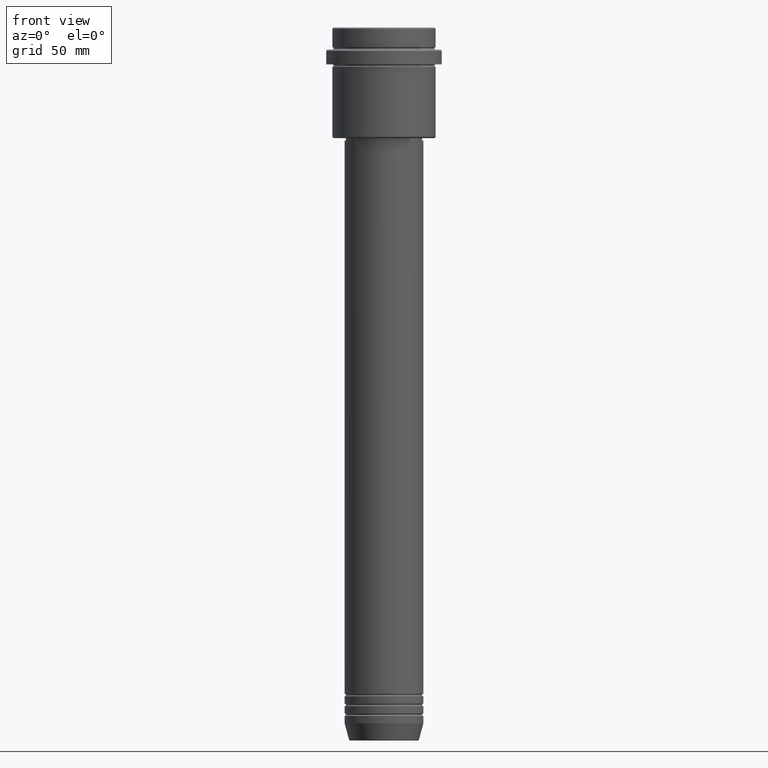
[diagram: clean part render]
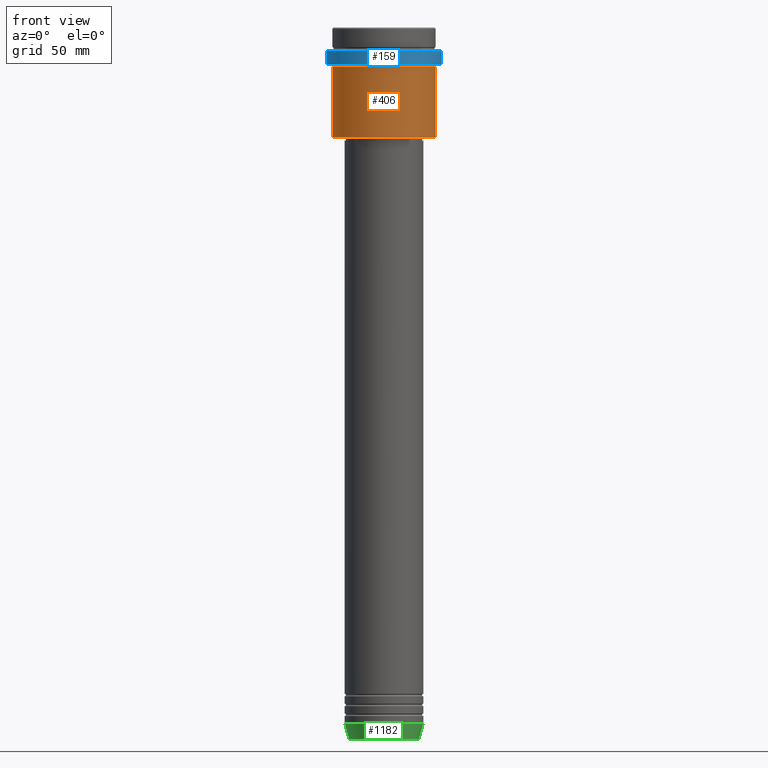
[diagram: same view with three faces highlighted in distinct colors, each labeled with its STEP entity id]
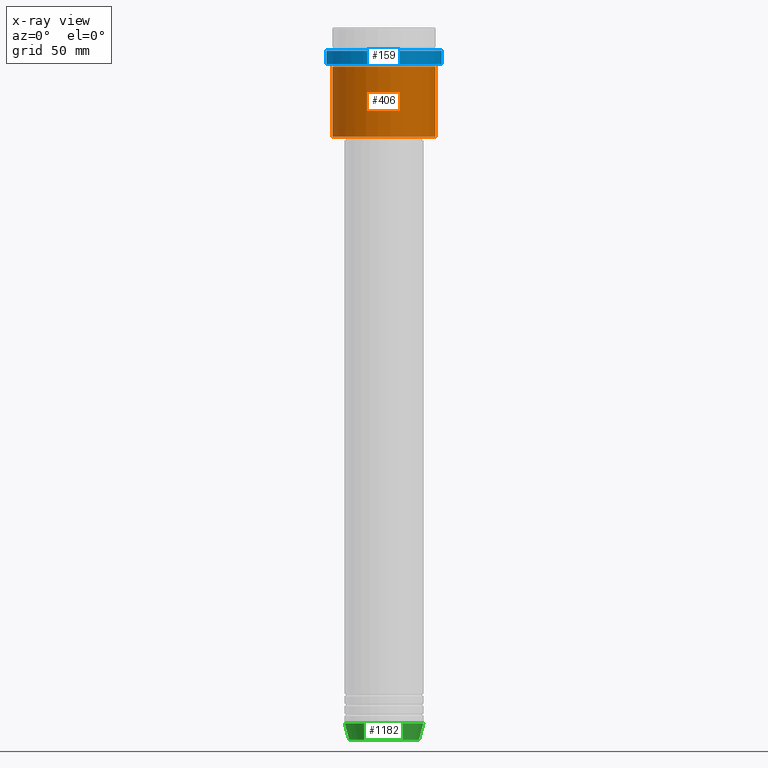
[diagram: x-ray of the same camera — body ghosted, the three highlighted faces saturated]
A machine part, front view with three faces highlighted in distinct colors.
The next image is the same camera in x-ray (body ghosted, the three faces saturated) — at least one of them is partly hidden behind the body in this view.
Their STEP definitions:

[orange] entity #406 — the highlighted cylindrical surface (partial cylindrical patch) has radius 21 mm, axis along (-0, -0, 1).
#2 = DIRECTION ( 'NONE',  ( -0.000000000000000000, -0.000000000000000000, 1.000000000000000000 ) ) ;
#15 = ORIENTED_EDGE ( 'NONE', *, *, #197, .T. ) ;
#72 = FACE_OUTER_BOUND ( 'NONE', #273, .T. ) ;
#117 = EDGE_CURVE ( 'NONE', #931, #1112, #400, .T. ) ;
#123 = CIRCLE ( 'NONE', #1171, 21.00000000000000000 ) ;
#179 = CARTESIAN_POINT ( 'NONE',  ( -21.00000000000000000, 2.571758278209441661E-15, 0.000000000000000000 ) ) ;
#197 = EDGE_CURVE ( 'NONE', #1308, #953, #1208, .T. ) ;
#273 = EDGE_LOOP ( 'NONE', ( #570, #1340, #15, #942 ) ) ;
#344 = EDGE_CURVE ( 'NONE', #931, #1308, #123, .T. ) ;
#400 = LINE ( 'NONE', #179, #487 ) ;
#406 = ADVANCED_FACE ( 'NONE', ( #72 ), #713, .T. ) ;
#450 = DIRECTION ( 'NONE',  ( 1.000000000000000000, 0.000000000000000000, 0.000000000000000000 ) ) ;
#454 = CARTESIAN_POINT ( 'NONE',  ( -21.00000000000000000, 2.571758278209441661E-15, -16.00000000000000355 ) ) ;
#464 = VECTOR ( 'NONE', #2, 1000.000000000000000 ) ;
#487 = VECTOR ( 'NONE', #744, 1000.000000000000000 ) ;
#570 = ORIENTED_EDGE ( 'NONE', *, *, #117, .F. ) ;
#599 = DIRECTION ( 'NONE',  ( -0.000000000000000000, -0.000000000000000000, 1.000000000000000000 ) ) ;
#648 = EDGE_CURVE ( 'NONE', #1112, #953, #1131, .T. ) ;
#713 = CYLINDRICAL_SURFACE ( 'NONE', #1358, 21.00000000000000000 ) ;
#734 = CARTESIAN_POINT ( 'NONE',  ( 0.000000000000000000, 0.000000000000000000, -44.49999999999991473 ) ) ;
#744 = DIRECTION ( 'NONE',  ( -0.000000000000000000, -0.000000000000000000, 1.000000000000000000 ) ) ;
#750 = CARTESIAN_POINT ( 'NONE',  ( 21.00000000000000000, 0.000000000000000000, -44.49999999999991473 ) ) ;
#801 = CARTESIAN_POINT ( 'NONE',  ( 0.000000000000000000, 0.000000000000000000, -16.00000000000000355 ) ) ;
#809 = CARTESIAN_POINT ( 'NONE',  ( 0.000000000000000000, 0.000000000000000000, 0.000000000000000000 ) ) ;
#817 = DIRECTION ( 'NONE',  ( -0.000000000000000000, -0.000000000000000000, 1.000000000000000000 ) ) ;
#931 = VERTEX_POINT ( 'NONE', #1415 ) ;
#939 = DIRECTION ( 'NONE',  ( 1.000000000000000000, 0.000000000000000000, 0.000000000000000000 ) ) ;
#942 = ORIENTED_EDGE ( 'NONE', *, *, #648, .F. ) ;
#953 = VERTEX_POINT ( 'NONE', #971 ) ;
#971 = CARTESIAN_POINT ( 'NONE',  ( 21.00000000000000000, 0.000000000000000000, -16.00000000000000355 ) ) ;
#1084 = AXIS2_PLACEMENT_3D ( 'NONE', #801, #1341, #450 ) ;
#1112 = VERTEX_POINT ( 'NONE', #454 ) ;
#1131 = CIRCLE ( 'NONE', #1084, 21.00000000000000000 ) ;
#1171 = AXIS2_PLACEMENT_3D ( 'NONE', #734, #817, #1258 ) ;
#1208 = LINE ( 'NONE', #1348, #464 ) ;
#1258 = DIRECTION ( 'NONE',  ( -1.000000000000000000, 0.000000000000000000, 0.000000000000000000 ) ) ;
#1308 = VERTEX_POINT ( 'NONE', #750 ) ;
#1340 = ORIENTED_EDGE ( 'NONE', *, *, #344, .T. ) ;
#1341 = DIRECTION ( 'NONE',  ( -0.000000000000000000, -0.000000000000000000, 1.000000000000000000 ) ) ;
#1348 = CARTESIAN_POINT ( 'NONE',  ( 21.00000000000000000, 0.000000000000000000, 0.000000000000000000 ) ) ;
#1358 = AXIS2_PLACEMENT_3D ( 'NONE', #809, #599, #939 ) ;
#1415 = CARTESIAN_POINT ( 'NONE',  ( -21.00000000000000000, 2.571758278209441661E-15, -44.49999999999991473 ) ) ;

[blue] entity #159 — the highlighted cylindrical surface (partial cylindrical patch) has radius 23.5 mm, axis along (-0, -0, 1).
#9 = VECTOR ( 'NONE', #204, 1000.000000000000000 ) ;
#67 = LINE ( 'NONE', #608, #830 ) ;
#97 = VERTEX_POINT ( 'NONE', #1396 ) ;
#100 = LINE ( 'NONE', #641, #9 ) ;
#112 = FACE_OUTER_BOUND ( 'NONE', #818, .T. ) ;
#127 = CIRCLE ( 'NONE', #444, 23.50000000000000000 ) ;
#159 = ADVANCED_FACE ( 'NONE', ( #112 ), #1190, .T. ) ;
#183 = CARTESIAN_POINT ( 'NONE',  ( 23.50000000000000000, 0.000000000000000000, -9.499999999999971578 ) ) ;
#202 = DIRECTION ( 'NONE',  ( -0.000000000000000000, -0.000000000000000000, 1.000000000000000000 ) ) ;
#204 = DIRECTION ( 'NONE',  ( -0.000000000000000000, -0.000000000000000000, 1.000000000000000000 ) ) ;
#270 = DIRECTION ( 'NONE',  ( -0.000000000000000000, -0.000000000000000000, 1.000000000000000000 ) ) ;
#416 = DIRECTION ( 'NONE',  ( 1.000000000000000000, 0.000000000000000000, 0.000000000000000000 ) ) ;
#435 = ORIENTED_EDGE ( 'NONE', *, *, #904, .T. ) ;
#444 = AXIS2_PLACEMENT_3D ( 'NONE', #1091, #1082, #416 ) ;
#466 = EDGE_CURVE ( 'NONE', #1192, #97, #100, .T. ) ;
#485 = ORIENTED_EDGE ( 'NONE', *, *, #466, .F. ) ;
#494 = VERTEX_POINT ( 'NONE', #528 ) ;
#528 = CARTESIAN_POINT ( 'NONE',  ( 23.50000000000000355, 0.000000000000000000, -15.00000000000000000 ) ) ;
#530 = AXIS2_PLACEMENT_3D ( 'NONE', #1099, #1025, #661 ) ;
#608 = CARTESIAN_POINT ( 'NONE',  ( 23.50000000000000000, 0.000000000000000000, 0.000000000000000000 ) ) ;
#641 = CARTESIAN_POINT ( 'NONE',  ( -23.50000000000000000, 2.877919977996280320E-15, 0.000000000000000000 ) ) ;
#661 = DIRECTION ( 'NONE',  ( 1.000000000000000000, 0.000000000000000000, 0.000000000000000000 ) ) ;
#680 = CIRCLE ( 'NONE', #881, 23.50000000000000355 ) ;
#704 = ORIENTED_EDGE ( 'NONE', *, *, #708, .T. ) ;
#708 = EDGE_CURVE ( 'NONE', #494, #1246, #67, .T. ) ;
#818 = EDGE_LOOP ( 'NONE', ( #485, #435, #704, #1159 ) ) ;
#830 = VECTOR ( 'NONE', #270, 1000.000000000000000 ) ;
#840 = DIRECTION ( 'NONE',  ( 1.000000000000000000, 0.000000000000000000, 0.000000000000000000 ) ) ;
#881 = AXIS2_PLACEMENT_3D ( 'NONE', #1309, #202, #840 ) ;
#904 = EDGE_CURVE ( 'NONE', #1192, #494, #680, .T. ) ;
#1025 = DIRECTION ( 'NONE',  ( -0.000000000000000000, -0.000000000000000000, 1.000000000000000000 ) ) ;
#1082 = DIRECTION ( 'NONE',  ( 0.000000000000000000, 0.000000000000000000, -1.000000000000000000 ) ) ;
#1091 = CARTESIAN_POINT ( 'NONE',  ( 0.000000000000000000, 0.000000000000000000, -9.499999999999971578 ) ) ;
#1099 = CARTESIAN_POINT ( 'NONE',  ( 0.000000000000000000, 0.000000000000000000, 0.000000000000000000 ) ) ;
#1159 = ORIENTED_EDGE ( 'NONE', *, *, #1227, .T. ) ;
#1190 = CYLINDRICAL_SURFACE ( 'NONE', #530, 23.50000000000000000 ) ;
#1192 = VERTEX_POINT ( 'NONE', #1236 ) ;
#1227 = EDGE_CURVE ( 'NONE', #1246, #97, #127, .T. ) ;
#1236 = CARTESIAN_POINT ( 'NONE',  ( -23.50000000000000711, 2.877919977996281109E-15, -15.00000000000000000 ) ) ;
#1246 = VERTEX_POINT ( 'NONE', #183 ) ;
#1309 = CARTESIAN_POINT ( 'NONE',  ( 0.000000000000000000, 0.000000000000000000, -15.00000000000000000 ) ) ;
#1396 = CARTESIAN_POINT ( 'NONE',  ( -23.50000000000000000, 2.877919977996280320E-15, -9.499999999999971578 ) ) ;

[green] entity #1182 — the highlighted conical surface has half-angle 15 deg.
#20 = EDGE_CURVE ( 'NONE', #504, #1035, #300, .T. ) ;
#27 = EDGE_LOOP ( 'NONE', ( #64, #234, #993, #1235 ) ) ;
#48 = CARTESIAN_POINT ( 'NONE',  ( -16.00000000000000000, 1.959434878635765131E-15, -283.0000000000000568 ) ) ;
#61 = DIRECTION ( 'NONE',  ( -0.000000000000000000, -0.000000000000000000, 1.000000000000000000 ) ) ;
#64 = ORIENTED_EDGE ( 'NONE', *, *, #810, .F. ) ;
#88 = CARTESIAN_POINT ( 'NONE',  ( 16.00000000000000000, 0.000000000000000000, -283.0000000000000568 ) ) ;
#104 = CARTESIAN_POINT ( 'NONE',  ( -14.22365507213718772, 1.850665122131323337E-15, -289.6294095225512706 ) ) ;
#147 = DIRECTION ( 'NONE',  ( 1.000000000000000000, 0.000000000000000000, 0.000000000000000000 ) ) ;
#234 = ORIENTED_EDGE ( 'NONE', *, *, #822, .T. ) ;
#247 = VERTEX_POINT ( 'NONE', #104 ) ;
#254 = FACE_OUTER_BOUND ( 'NONE', #27, .T. ) ;
#300 = LINE ( 'NONE', #88, #872 ) ;
#360 = CARTESIAN_POINT ( 'NONE',  ( 0.000000000000000000, 0.000000000000000000, -283.0000000000000568 ) ) ;
#361 = VERTEX_POINT ( 'NONE', #488 ) ;
#401 = EDGE_CURVE ( 'NONE', #361, #1035, #876, .T. ) ;
#415 = AXIS2_PLACEMENT_3D ( 'NONE', #937, #61, #917 ) ;
#488 = CARTESIAN_POINT ( 'NONE',  ( -16.00000000000000000, 1.959434878635765131E-15, -283.0000000000000568 ) ) ;
#504 = VERTEX_POINT ( 'NONE', #1389 ) ;
#624 = AXIS2_PLACEMENT_3D ( 'NONE', #1163, #1039, #827 ) ;
#696 = DIRECTION ( 'NONE',  ( -0.000000000000000000, -0.000000000000000000, 1.000000000000000000 ) ) ;
#791 = CONICAL_SURFACE ( 'NONE', #1292, 16.00000000000000000, 0.2617993877991500740 ) ;
#810 = EDGE_CURVE ( 'NONE', #247, #361, #932, .T. ) ;
#822 = EDGE_CURVE ( 'NONE', #247, #504, #1174, .T. ) ;
#827 = DIRECTION ( 'NONE',  ( 1.000000000000000000, 0.000000000000000000, 0.000000000000000000 ) ) ;
#859 = DIRECTION ( 'NONE',  ( 0.2588190451025213501, 0.000000000000000000, 0.9659258262890680902 ) ) ;
#872 = VECTOR ( 'NONE', #859, 1000.000000000000000 ) ;
#876 = CIRCLE ( 'NONE', #624, 16.00000000000000000 ) ;
#917 = DIRECTION ( 'NONE',  ( 1.000000000000000000, 0.000000000000000000, 0.000000000000000000 ) ) ;
#932 = LINE ( 'NONE', #48, #1151 ) ;
#937 = CARTESIAN_POINT ( 'NONE',  ( 0.000000000000000000, 0.000000000000000000, -289.6294095225512706 ) ) ;
#985 = CARTESIAN_POINT ( 'NONE',  ( 16.00000000000000000, 0.000000000000000000, -283.0000000000000568 ) ) ;
#993 = ORIENTED_EDGE ( 'NONE', *, *, #20, .T. ) ;
#1035 = VERTEX_POINT ( 'NONE', #985 ) ;
#1039 = DIRECTION ( 'NONE',  ( -0.000000000000000000, -0.000000000000000000, 1.000000000000000000 ) ) ;
#1151 = VECTOR ( 'NONE', #1363, 1000.000000000000000 ) ;
#1163 = CARTESIAN_POINT ( 'NONE',  ( 0.000000000000000000, 0.000000000000000000, -283.0000000000000568 ) ) ;
#1174 = CIRCLE ( 'NONE', #415, 14.22365507213718772 ) ;
#1182 = ADVANCED_FACE ( 'NONE', ( #254 ), #791, .T. ) ;
#1235 = ORIENTED_EDGE ( 'NONE', *, *, #401, .F. ) ;
#1292 = AXIS2_PLACEMENT_3D ( 'NONE', #360, #696, #147 ) ;
#1363 = DIRECTION ( 'NONE',  ( -0.2588190451025213501, 3.169619151431772337E-17, 0.9659258262890680902 ) ) ;
#1389 = CARTESIAN_POINT ( 'NONE',  ( 14.22365507213718772, 0.000000000000000000, -289.6294095225512706 ) ) ;